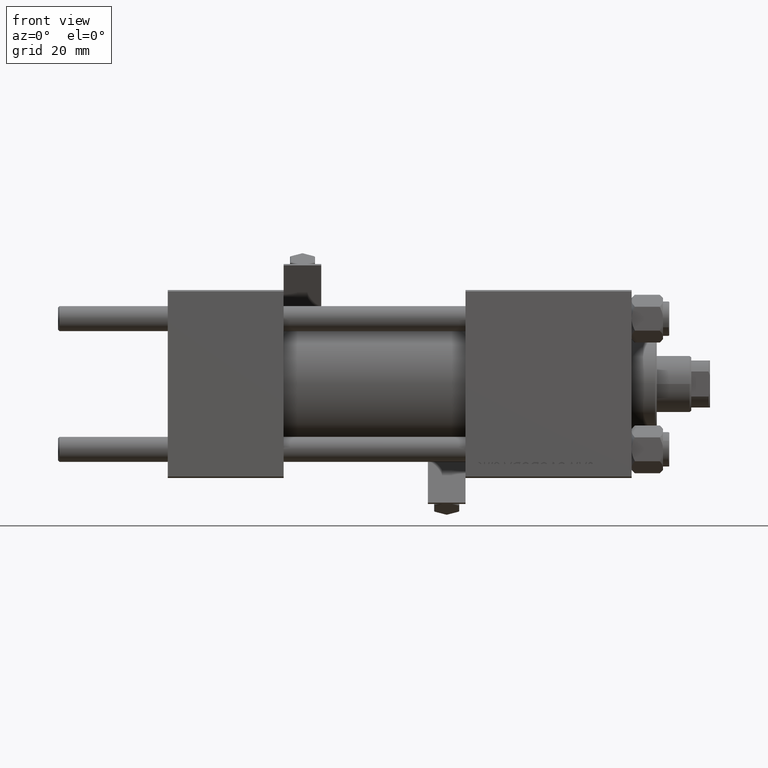
[diagram: clean part render]
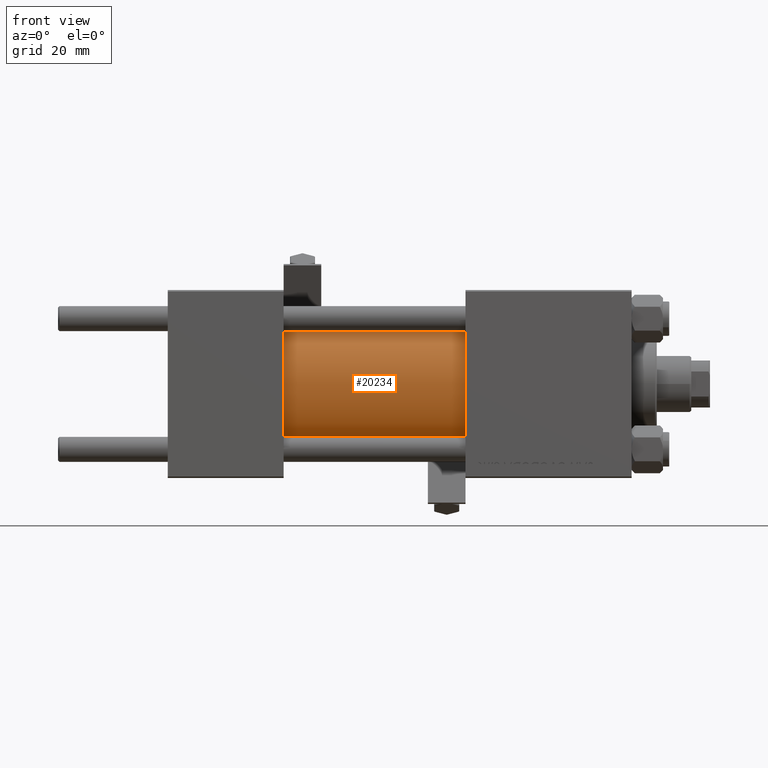
[diagram: same view with one face highlighted and labeled with its STEP entity id]
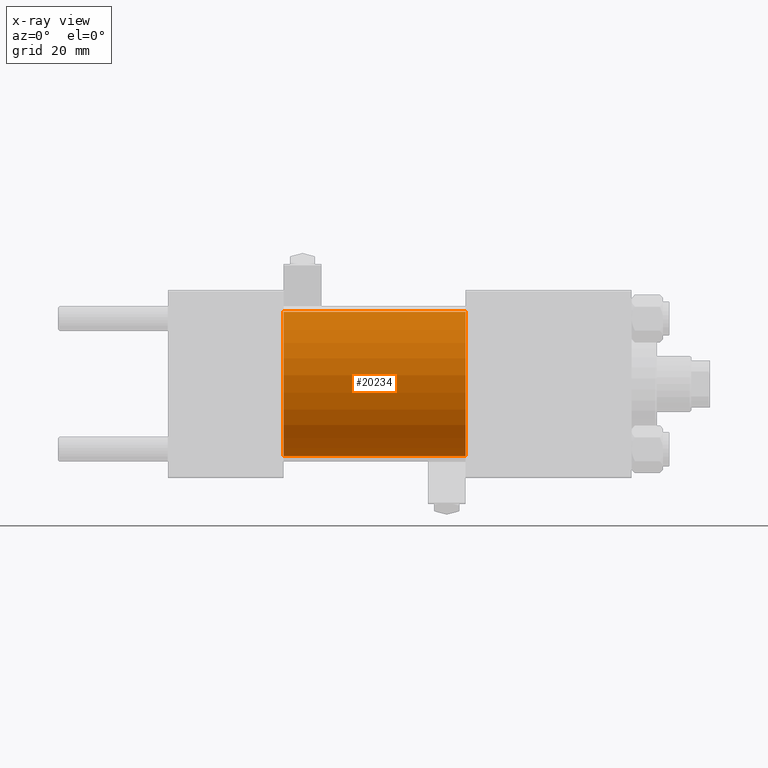
[diagram: x-ray of the same camera — body ghosted, the highlighted face saturated]
A machine part, front view. The second image highlights one B-rep face of the part: STEP entity #20234.
The next image is the same camera in x-ray: the body ghosted, the highlighted face saturated — about 0% of this face is hidden behind the body in this view.
In plain terms, the highlighted cylindrical surface (partial cylindrical patch) has radius 23 mm, axis along (-1, -0, -0).
Its self-contained STEP definition (entity closure, byte-faithful):
#780 = LINE ( 'NONE', #32199, #17119 ) ;
#1217 = ORIENTED_EDGE ( 'NONE', *, *, #25416, .T. ) ;
#3499 = DIRECTION ( 'NONE',  ( 1.000000000000000000, -0.000000000000000000, 0.000000000000000000 ) ) ;
#6994 = CARTESIAN_POINT ( 'NONE',  ( 95.00000000000000000, 0.000000000000000000, 23.00000000000000000 ) ) ;
#7614 = DIRECTION ( 'NONE',  ( 0.000000000000000000, 0.000000000000000000, 1.000000000000000000 ) ) ;
#9306 = DIRECTION ( 'NONE',  ( 1.000000000000000000, 0.000000000000000000, 0.000000000000000000 ) ) ;
#9346 = CARTESIAN_POINT ( 'NONE',  ( 95.00000000000000000, 0.000000000000000000, 0.000000000000000000 ) ) ;
#9901 = AXIS2_PLACEMENT_3D ( 'NONE', #9346, #27726, #21452 ) ;
#10070 = DIRECTION ( 'NONE',  ( 0.000000000000000000, 0.000000000000000000, -1.000000000000000000 ) ) ;
#10250 = EDGE_CURVE ( 'NONE', #33484, #49760, #780, .T. ) ;
#11910 = AXIS2_PLACEMENT_3D ( 'NONE', #43398, #3499, #7614 ) ;
#14242 = CARTESIAN_POINT ( 'NONE',  ( 95.00000000000000000, 2.816687638038911957E-15, -23.00000000000000000 ) ) ;
#15580 = ORIENTED_EDGE ( 'NONE', *, *, #10250, .T. ) ;
#16991 = VECTOR ( 'NONE', #17106, 1000.000000000000000 ) ;
#17106 = DIRECTION ( 'NONE',  ( -1.000000000000000000, -0.000000000000000000, -0.000000000000000000 ) ) ;
#17119 = VECTOR ( 'NONE', #17252, 1000.000000000000000 ) ;
#17252 = DIRECTION ( 'NONE',  ( -1.000000000000000000, -0.000000000000000000, -0.000000000000000000 ) ) ;
#18083 = EDGE_CURVE ( 'NONE', #33484, #25514, #19017, .T. ) ;
#19017 = CIRCLE ( 'NONE', #25604, 23.00000000000000000 ) ;
#20234 = ADVANCED_FACE ( 'NONE', ( #35682 ), #21201, .T. ) ;
#21201 = CYLINDRICAL_SURFACE ( 'NONE', #9901, 23.00000000000000000 ) ;
#21452 = DIRECTION ( 'NONE',  ( 0.000000000000000000, 0.000000000000000000, 1.000000000000000000 ) ) ;
#25416 = EDGE_CURVE ( 'NONE', #49760, #39916, #43923, .T. ) ;
#25514 = VERTEX_POINT ( 'NONE', #27195 ) ;
#25604 = AXIS2_PLACEMENT_3D ( 'NONE', #37345, #9306, #10070 ) ;
#27195 = CARTESIAN_POINT ( 'NONE',  ( 95.00000000000000000, 2.816687638038911957E-15, -23.00000000000000000 ) ) ;
#27726 = DIRECTION ( 'NONE',  ( -1.000000000000000000, -0.000000000000000000, -0.000000000000000000 ) ) ;
#30607 = CARTESIAN_POINT ( 'NONE',  ( 37.00000000000000000, 2.816687638038911957E-15, -23.00000000000000000 ) ) ;
#32199 = CARTESIAN_POINT ( 'NONE',  ( 95.00000000000000000, 0.000000000000000000, 23.00000000000000000 ) ) ;
#33484 = VERTEX_POINT ( 'NONE', #6994 ) ;
#33548 = LINE ( 'NONE', #14242, #16991 ) ;
#34185 = EDGE_CURVE ( 'NONE', #25514, #39916, #33548, .T. ) ;
#35682 = FACE_OUTER_BOUND ( 'NONE', #41144, .T. ) ;
#37037 = ORIENTED_EDGE ( 'NONE', *, *, #18083, .F. ) ;
#37345 = CARTESIAN_POINT ( 'NONE',  ( 95.00000000000000000, 0.000000000000000000, 0.000000000000000000 ) ) ;
#39916 = VERTEX_POINT ( 'NONE', #30607 ) ;
#41144 = EDGE_LOOP ( 'NONE', ( #43552, #37037, #15580, #1217 ) ) ;
#43398 = CARTESIAN_POINT ( 'NONE',  ( 37.00000000000000000, 0.000000000000000000, 0.000000000000000000 ) ) ;
#43552 = ORIENTED_EDGE ( 'NONE', *, *, #34185, .F. ) ;
#43923 = CIRCLE ( 'NONE', #11910, 23.00000000000000000 ) ;
#48103 = CARTESIAN_POINT ( 'NONE',  ( 37.00000000000000000, 0.000000000000000000, 23.00000000000000000 ) ) ;
#49760 = VERTEX_POINT ( 'NONE', #48103 ) ;